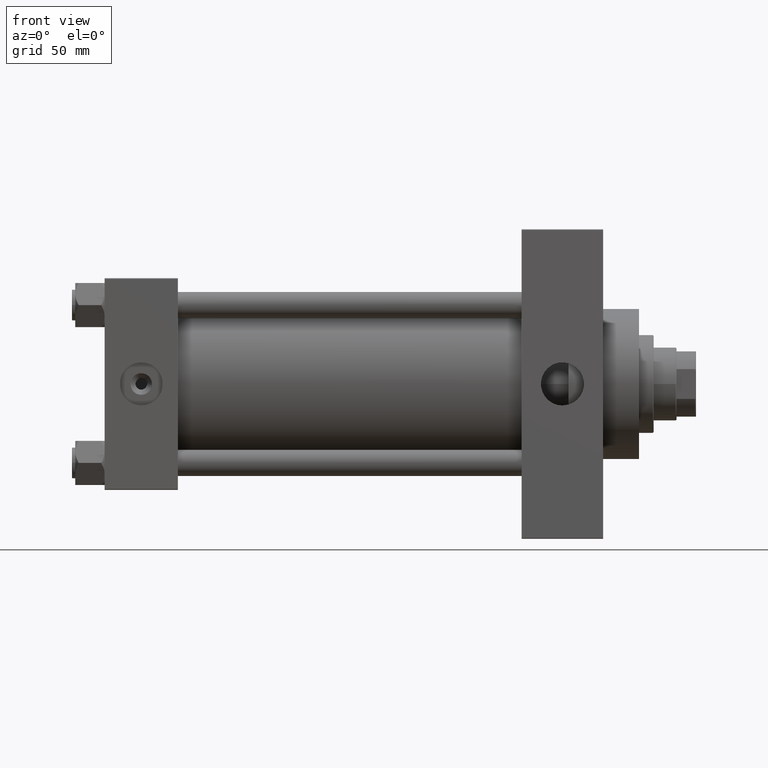
[diagram: clean part render]
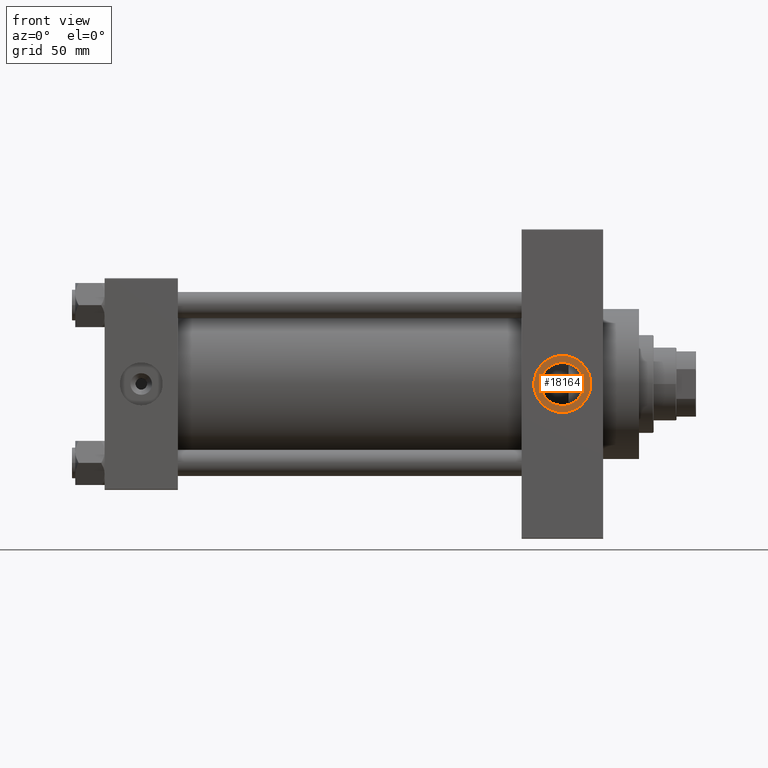
[diagram: same view with one face highlighted and labeled with its STEP entity id]
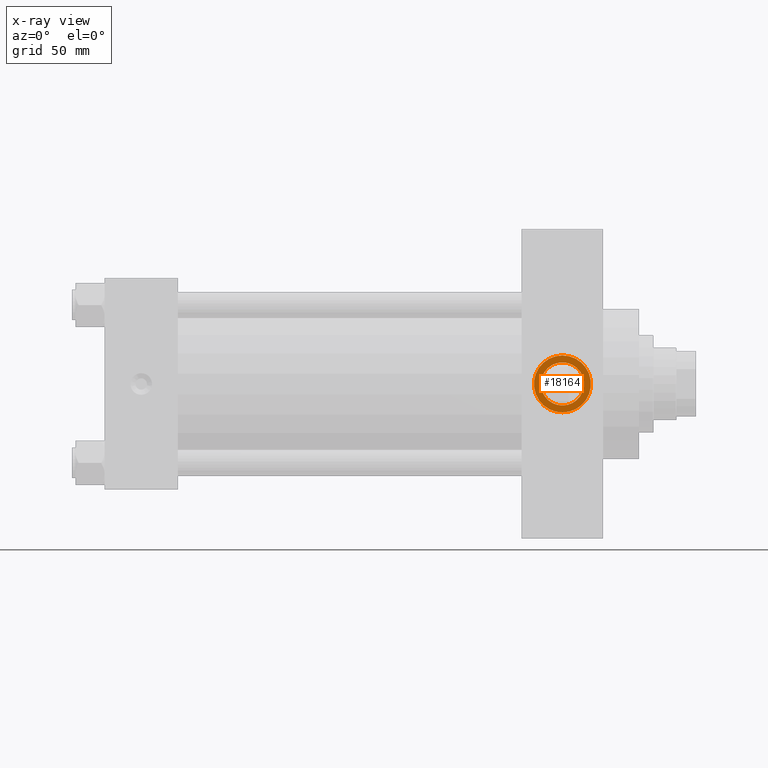
[diagram: x-ray of the same camera — body ghosted, the highlighted face saturated]
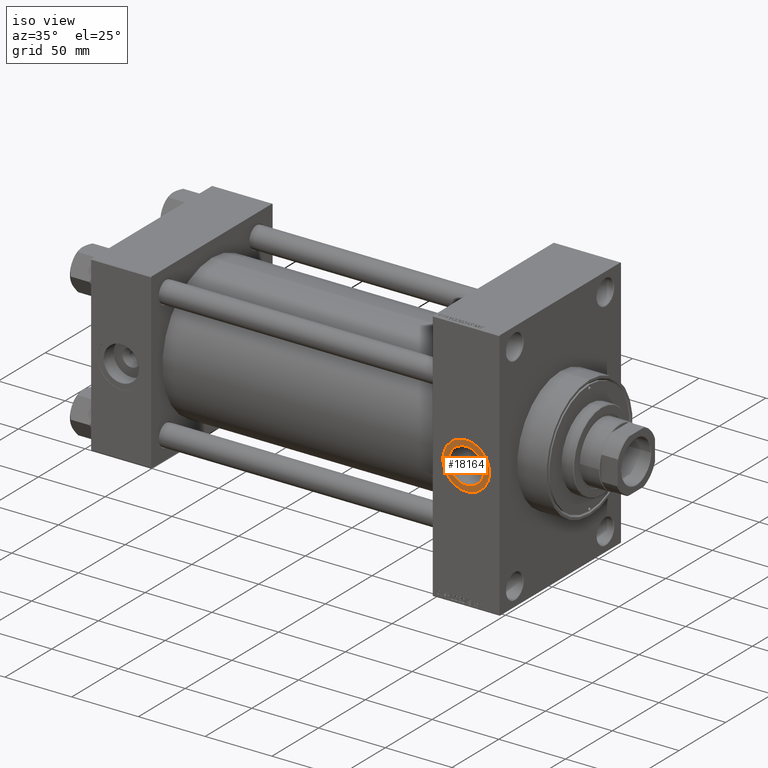
[diagram: same view with one face highlighted and labeled with its STEP entity id]
A machine part, front view. The second image highlights one B-rep face of the part: STEP entity #18164.
The next image is the same camera in x-ray: the body ghosted, the highlighted face saturated — about 0% of this face is hidden behind the body in this view.
A second angle (iso view) of the same face is appended — the face is thin or edge-on in the first view.
In plain terms, the highlighted planar face has unit normal (0, -1, -0).
Its self-contained STEP definition (entity closure, byte-faithful):
#1122 = VERTEX_POINT ( 'NONE', #15029 ) ;
#4169 = AXIS2_PLACEMENT_3D ( 'NONE', #23433, #19141, #19892 ) ;
#4691 = CIRCLE ( 'NONE', #38591, 13.21999999999998465 ) ;
#6650 = DIRECTION ( 'NONE',  ( 0.000000000000000000, -1.000000000000000000, -8.673617379884036705E-17 ) ) ;
#8808 = EDGE_CURVE ( 'NONE', #44247, #37236, #42081, .T. ) ;
#9192 = VERTEX_POINT ( 'NONE', #40956 ) ;
#9856 = ORIENTED_EDGE ( 'NONE', *, *, #35741, .F. ) ;
#10609 = ORIENTED_EDGE ( 'NONE', *, *, #24146, .T. ) ;
#12723 = FACE_BOUND ( 'NONE', #13070, .T. ) ;
#12873 = ORIENTED_EDGE ( 'NONE', *, *, #8808, .T. ) ;
#13070 = EDGE_LOOP ( 'NONE', ( #27051, #9856 ) ) ;
#13357 = CARTESIAN_POINT ( 'NONE',  ( 281.0000000000000000, -64.80000000000001137, 1.734723475976770117E-17 ) ) ;
#14020 = CARTESIAN_POINT ( 'NONE',  ( 281.0000000000000000, -64.80000000000001137, -17.49999999999999645 ) ) ;
#14231 = AXIS2_PLACEMENT_3D ( 'NONE', #43295, #43546, #28835 ) ;
#15029 = CARTESIAN_POINT ( 'NONE',  ( 281.0000000000000000, -64.80000000000001137, 13.21999999999998465 ) ) ;
#18164 = ADVANCED_FACE ( 'NONE', ( #12723, #42809 ), #39259, .T. ) ;
#18262 = CIRCLE ( 'NONE', #36049, 13.21999999999998465 ) ;
#19141 = DIRECTION ( 'NONE',  ( 0.000000000000000000, -1.000000000000000000, -8.673617379884036705E-17 ) ) ;
#19892 = DIRECTION ( 'NONE',  ( 0.000000000000000000, 0.000000000000000000, -1.000000000000000000 ) ) ;
#20050 = EDGE_LOOP ( 'NONE', ( #12873, #10609 ) ) ;
#20686 = DIRECTION ( 'NONE',  ( 0.000000000000000000, -1.000000000000000000, -8.673617379884036705E-17 ) ) ;
#21297 = CARTESIAN_POINT ( 'NONE',  ( 281.0000000000000000, -64.80000000000001137, 17.49999999999999645 ) ) ;
#23433 = CARTESIAN_POINT ( 'NONE',  ( 281.0000000000000000, -64.80000000000001137, 1.734723475976807403E-17 ) ) ;
#24046 = EDGE_CURVE ( 'NONE', #9192, #1122, #18262, .T. ) ;
#24146 = EDGE_CURVE ( 'NONE', #37236, #44247, #27167, .T. ) ;
#24346 = CARTESIAN_POINT ( 'NONE',  ( 281.0000000000000000, -64.80000000000001137, 1.734723475976807403E-17 ) ) ;
#26353 = DIRECTION ( 'NONE',  ( 0.000000000000000000, 0.000000000000000000, -1.000000000000000000 ) ) ;
#27051 = ORIENTED_EDGE ( 'NONE', *, *, #24046, .F. ) ;
#27167 = CIRCLE ( 'NONE', #14231, 17.49999999999999645 ) ;
#28835 = DIRECTION ( 'NONE',  ( 0.000000000000000000, 0.000000000000000000, -1.000000000000000000 ) ) ;
#31678 = DIRECTION ( 'NONE',  ( 0.000000000000000000, 8.673617379884036705E-17, -1.000000000000000000 ) ) ;
#35741 = EDGE_CURVE ( 'NONE', #1122, #9192, #4691, .T. ) ;
#36049 = AXIS2_PLACEMENT_3D ( 'NONE', #42420, #6650, #26353 ) ;
#37236 = VERTEX_POINT ( 'NONE', #21297 ) ;
#38591 = AXIS2_PLACEMENT_3D ( 'NONE', #13357, #20686, #47519 ) ;
#39259 = PLANE ( 'NONE',  #40684 ) ;
#40684 = AXIS2_PLACEMENT_3D ( 'NONE', #24346, #47123, #31678 ) ;
#40956 = CARTESIAN_POINT ( 'NONE',  ( 281.0000000000000000, -64.80000000000001137, -13.21999999999998465 ) ) ;
#42081 = CIRCLE ( 'NONE', #4169, 17.49999999999999645 ) ;
#42420 = CARTESIAN_POINT ( 'NONE',  ( 281.0000000000000000, -64.80000000000001137, 1.734723475976770117E-17 ) ) ;
#42809 = FACE_OUTER_BOUND ( 'NONE', #20050, .T. ) ;
#43295 = CARTESIAN_POINT ( 'NONE',  ( 281.0000000000000000, -64.80000000000001137, 1.734723475976807403E-17 ) ) ;
#43546 = DIRECTION ( 'NONE',  ( 0.000000000000000000, -1.000000000000000000, -8.673617379884036705E-17 ) ) ;
#44247 = VERTEX_POINT ( 'NONE', #14020 ) ;
#47123 = DIRECTION ( 'NONE',  ( 0.000000000000000000, -1.000000000000000000, -8.673617379884036705E-17 ) ) ;
#47519 = DIRECTION ( 'NONE',  ( 0.000000000000000000, 0.000000000000000000, -1.000000000000000000 ) ) ;